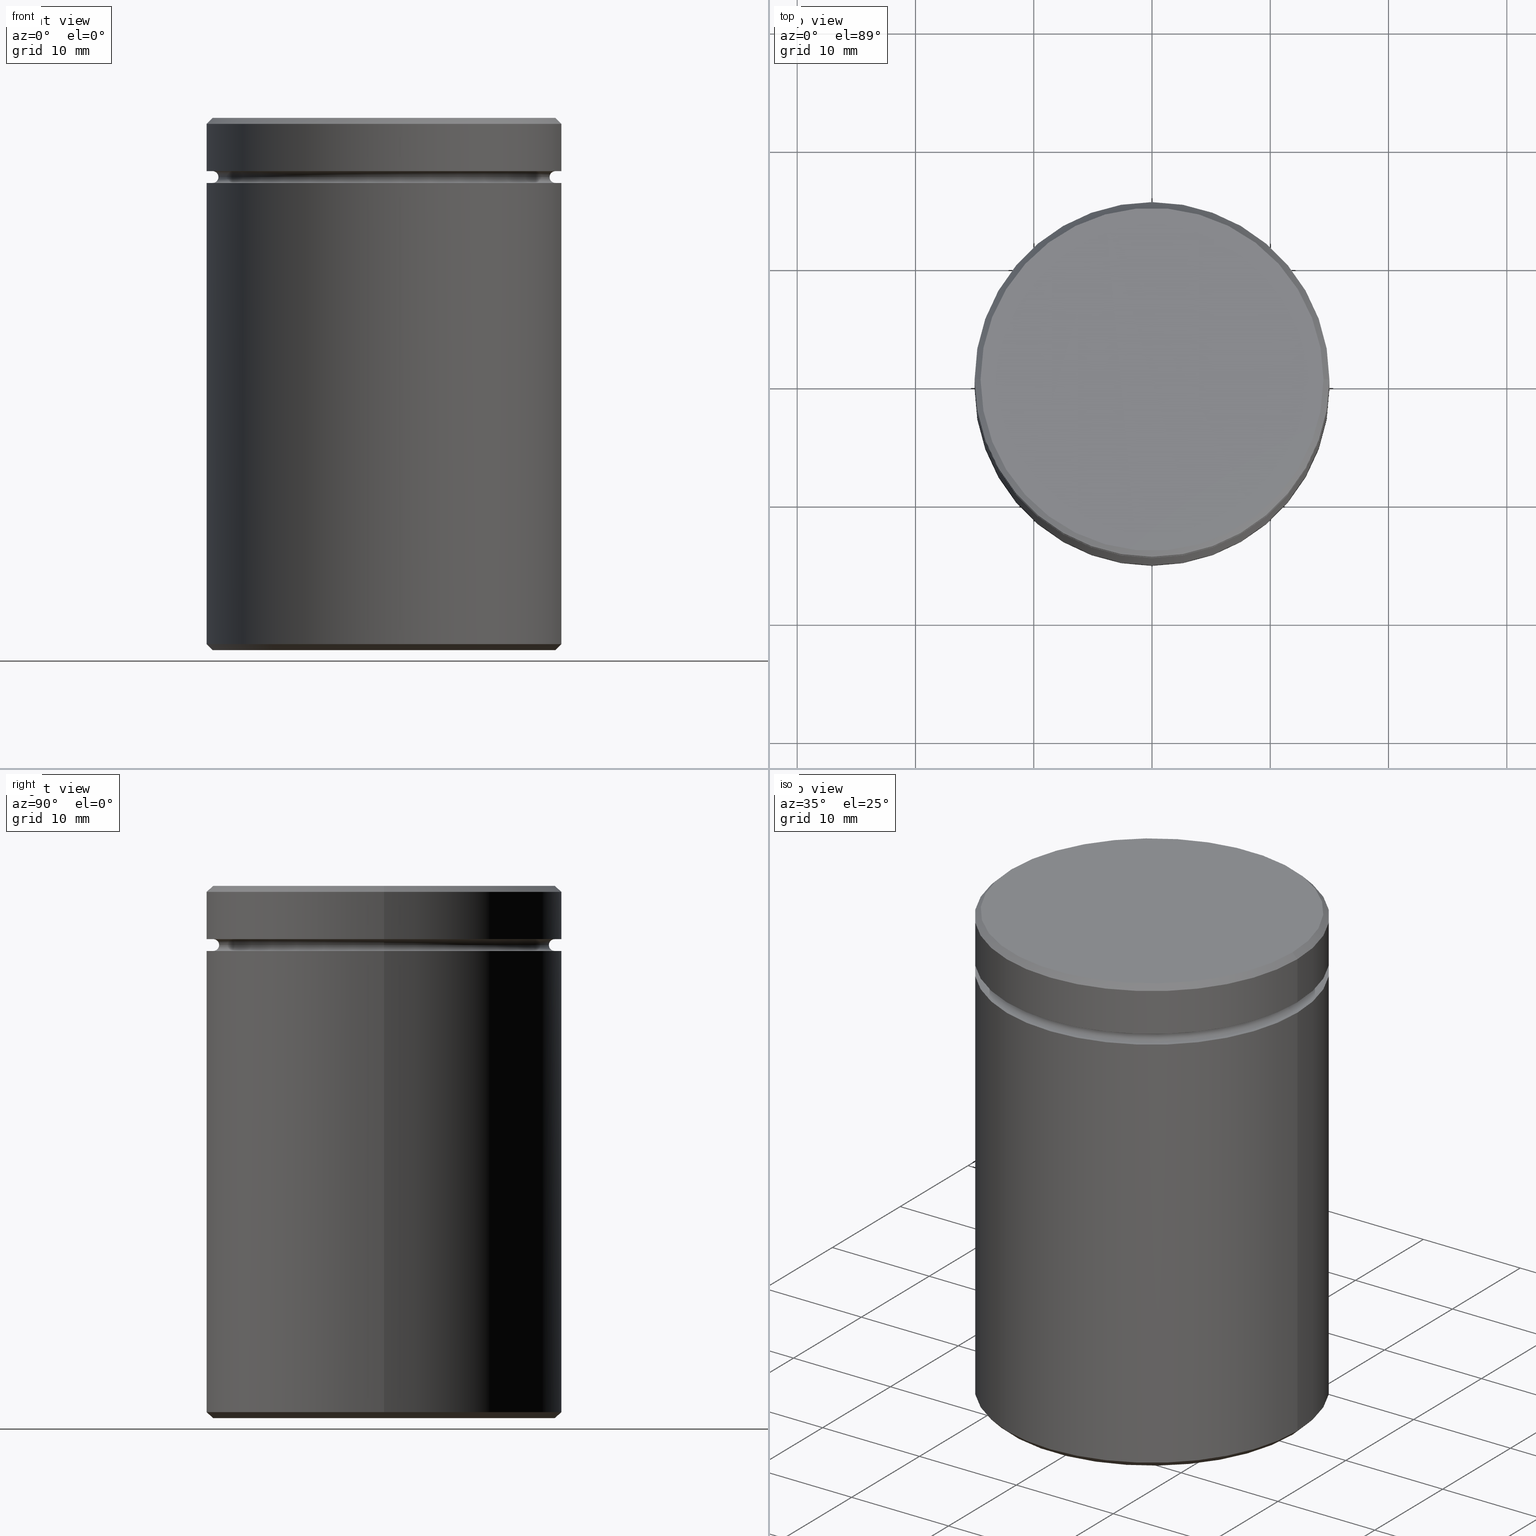
[diagram: canonical four-view strip — front | top / right | iso, engineering-drawing reading convention]
A machine part, canonical four-view strip (front | top / right | iso — engineering-drawing reading convention). The complete STEP part file that produces these views, byte-faithful:
ISO-10303-21;
HEADER;
FILE_DESCRIPTION (( 'STEP AP203' ),
    '1' );
FILE_NAME ('9a0f.STEP',
    '2024-01-02T17:58:48',
    ( '' ),
    ( '' ),
    'SwSTEP 2.0',
    'SolidWorks 2019',
    '' );
FILE_SCHEMA (( 'CONFIG_CONTROL_DESIGN' ));
ENDSEC;

DATA;
#1 = PERSON ( 'NEUR�EN�', 'NEUR�EN�', 'NEUR�EN�', ('NEUR�EN�'), ('NEUR�EN�'), ('NEUR�EN�') ) ;
#2 = PERSON_AND_ORGANIZATION ( #1, #469 ) ;
#3 = CC_DESIGN_PERSON_AND_ORGANIZATION_ASSIGNMENT ( #487, #372, ( #151 ) ) ;
#4 = DIRECTION ( 'NONE',  ( 1.000000000000000000, 0.000000000000000000, 0.000000000000000000 ) ) ;
#5 = ORIENTED_EDGE ( 'NONE', *, *, #191, .F. ) ;
#6 = ORIENTED_EDGE ( 'NONE', *, *, #263, .T. ) ;
#7 = DIRECTION ( 'NONE',  ( 1.000000000000000000, 0.000000000000000000, 0.000000000000000000 ) ) ;
#8 = APPROVAL_PERSON_ORGANIZATION ( #401, #565, #238 ) ;
#9 = EDGE_CURVE ( 'NONE', #413, #302, #107, .T. ) ;
#10 = PERSON_AND_ORGANIZATION_ROLE ( 'creator' ) ;
#11 = DIRECTION ( 'NONE',  ( -1.000000000000000000, 0.000000000000000000, 0.000000000000000000 ) ) ;
#12 = APPROVAL_DATE_TIME ( #408, #481 ) ;
#13 = ORIENTED_EDGE ( 'NONE', *, *, #285, .F. ) ;
#14 = ORIENTED_EDGE ( 'NONE', *, *, #522, .F. ) ;
#15 = DIRECTION ( 'NONE',  ( 0.000000000000000000, 0.000000000000000000, -1.000000000000000000 ) ) ;
#16 = EDGE_LOOP ( 'NONE', ( #307, #131, #212, #122 ) ) ;
#17 = APPLICATION_PROTOCOL_DEFINITION ( 'international standard', 'config_control_design', 1994, #443 ) ;
#18 = DIRECTION ( 'NONE',  ( 0.000000000000000000, -0.000000000000000000, 1.000000000000000000 ) ) ;
#19 = ADVANCED_FACE ( 'NONE', ( #181 ), #256, .T. ) ;
#20 = CC_DESIGN_APPROVAL ( #481, ( #376 ) ) ;
#21 = DIRECTION ( 'NONE',  ( -0.000000000000000000, -0.000000000000000000, 1.000000000000000000 ) ) ;
#22 = DIRECTION ( 'NONE',  ( -1.000000000000000000, 0.000000000000000000, -0.000000000000000000 ) ) ;
#23 = EDGE_CURVE ( 'NONE', #366, #95, #306, .T. ) ;
#24 = CARTESIAN_POINT ( 'NONE',  ( 0.000000000000000000, 0.000000000000000000, -15.99999999999999645 ) ) ;
#25 = CIRCLE ( 'NONE', #374, 15.00000000000000000 ) ;
#26 = ADVANCED_FACE ( 'NONE', ( #226 ), #435, .T. ) ;
#27 = DIRECTION ( 'NONE',  ( 0.000000000000000000, 0.000000000000000000, -1.000000000000000000 ) ) ;
#28 = ORIENTED_EDGE ( 'NONE', *, *, #239, .T. ) ;
#29 = DIRECTION ( 'NONE',  ( 0.000000000000000000, 0.000000000000000000, -1.000000000000000000 ) ) ;
#30 = VERTEX_POINT ( 'NONE', #514 ) ;
#31 = CARTESIAN_POINT ( 'NONE',  ( 0.000000000000000000, 0.000000000000000000, -5.500000000000000000 ) ) ;
#32 = EDGE_CURVE ( 'NONE', #236, #450, #42, .T. ) ;
#33 = EDGE_CURVE ( 'NONE', #551, #413, #180, .T. ) ;
#34 = EDGE_LOOP ( 'NONE', ( #83, #505 ) ) ;
#35 = CONICAL_SURFACE ( 'NONE', #358, 15.00000000000000000, 0.7853981633974430610 ) ;
#36 = AXIS2_PLACEMENT_3D ( 'NONE', #544, #550, #252 ) ;
#37 = APPROVAL_PERSON_ORGANIZATION ( #354, #394, #114 ) ;
#38 = DIRECTION ( 'NONE',  ( 0.000000000000000000, -0.000000000000000000, 1.000000000000000000 ) ) ;
#39 = ORIENTED_EDGE ( 'NONE', *, *, #549, .T. ) ;
#40 = ORIENTED_EDGE ( 'NONE', *, *, #129, .T. ) ;
#41 = DIRECTION ( 'NONE',  ( -0.000000000000000000, -0.000000000000000000, 1.000000000000000000 ) ) ;
#42 = LINE ( 'NONE', #222, #287 ) ;
#43 = ORIENTED_EDGE ( 'NONE', *, *, #449, .T. ) ;
#44 = DIRECTION ( 'NONE',  ( -0.000000000000000000, -0.000000000000000000, 1.000000000000000000 ) ) ;
#45 = VECTOR ( 'NONE', #458, 1000.000000000000000 ) ;
#46 = EDGE_LOOP ( 'NONE', ( #64, #192, #5, #429 ) ) ;
#47 = VERTEX_POINT ( 'NONE', #472 ) ;
#48 = ORIENTED_EDGE ( 'NONE', *, *, #229, .F. ) ;
#49 = ORIENTED_EDGE ( 'NONE', *, *, #251, .F. ) ;
#50 = DIRECTION ( 'NONE',  ( 0.000000000000000000, 0.000000000000000000, -1.000000000000000000 ) ) ;
#51 = ORIENTED_EDGE ( 'NONE', *, *, #387, .T. ) ;
#52 = APPROVAL_DATE_TIME ( #531, #394 ) ;
#53 = EDGE_LOOP ( 'NONE', ( #66, #39 ) ) ;
#54 = FACE_OUTER_BOUND ( 'NONE', #102, .T. ) ;
#55 = CIRCLE ( 'NONE', #346, 0.5000000000000004441 ) ;
#56 = ADVANCED_FACE ( 'NONE', ( #564 ), #135, .T. ) ;
#57 = DIRECTION ( 'NONE',  ( -0.000000000000000000, -0.000000000000000000, 1.000000000000000000 ) ) ;
#58 = ORIENTED_EDGE ( 'NONE', *, *, #23, .F. ) ;
#59 = PERSON_AND_ORGANIZATION ( #1, #469 ) ;
#60 = ADVANCED_FACE ( 'NONE', ( #557 ), #436, .F. ) ;
#61 = CARTESIAN_POINT ( 'NONE',  ( 14.50000000000000355, 1.806354028742346196E-15, 0.000000000000000000 ) ) ;
#62 = DIRECTION ( 'NONE',  ( 0.000000000000000000, 0.000000000000000000, -1.000000000000000000 ) ) ;
#63 = CIRCLE ( 'NONE', #139, 14.49999999999999112 ) ;
#64 = ORIENTED_EDGE ( 'NONE', *, *, #235, .F. ) ;
#65 = CARTESIAN_POINT ( 'NONE',  ( 14.49999999999999822, 0.000000000000000000, -5.500000000000000000 ) ) ;
#66 = ORIENTED_EDGE ( 'NONE', *, *, #9, .T. ) ;
#67 = EDGE_CURVE ( 'NONE', #492, #319, #428, .T. ) ;
#68 = CARTESIAN_POINT ( 'NONE',  ( 0.000000000000000000, 0.000000000000000000, 0.000000000000000000 ) ) ;
#69 = VERTEX_POINT ( 'NONE', #215 ) ;
#70 = CONICAL_SURFACE ( 'NONE', #150, 14.50000000000000355, 0.7853981633974466137 ) ;
#71 = LOCAL_TIME ( 18, 58, 48.00000000000000000, #94 ) ;
#72 = CARTESIAN_POINT ( 'NONE',  ( 0.000000000000000000, 0.000000000000000000, -44.49999999999998579 ) ) ;
#73 = CARTESIAN_POINT ( 'NONE',  ( 14.50000000000000355, 1.775737858763662804E-15, 0.000000000000000000 ) ) ;
#74 = CARTESIAN_POINT ( 'NONE',  ( 15.00000000000000000, 0.000000000000000000, -44.49999999999998579 ) ) ;
#75 = DIRECTION ( 'NONE',  ( -1.000000000000000000, 0.000000000000000000, 0.000000000000000000 ) ) ;
#76 = AXIS2_PLACEMENT_3D ( 'NONE', #228, #540, #398 ) ;
#77 = APPROVAL_PERSON_ORGANIZATION ( #2, #481, #322 ) ;
#78 = DIRECTION ( 'NONE',  ( 1.000000000000000000, 0.000000000000000000, 0.000000000000000000 ) ) ;
#79 = ORIENTED_EDGE ( 'NONE', *, *, #549, .F. ) ;
#80 = CARTESIAN_POINT ( 'NONE',  ( 0.000000000000000000, 0.000000000000000000, -4.500000000000000888 ) ) ;
#81 = ORIENTED_EDGE ( 'NONE', *, *, #387, .F. ) ;
#82 = ORIENTED_EDGE ( 'NONE', *, *, #373, .T. ) ;
#83 = ORIENTED_EDGE ( 'NONE', *, *, #329, .F. ) ;
#84 = ADVANCED_FACE ( 'NONE', ( #484 ), #170, .T. ) ;
#85 = APPLICATION_PROTOCOL_DEFINITION ( 'international standard', 'config_control_design', 1994, #92 ) ;
#86 = ORIENTED_EDGE ( 'NONE', *, *, #191, .T. ) ;
#87 = EDGE_LOOP ( 'NONE', ( #439, #444 ) ) ;
#88 = DIRECTION ( 'NONE',  ( -0.000000000000000000, -0.000000000000000000, -1.000000000000000000 ) ) ;
#89 = CARTESIAN_POINT ( 'NONE',  ( 0.000000000000000000, 0.000000000000000000, -4.999999999999999112 ) ) ;
#90 = DIRECTION ( 'NONE',  ( 1.000000000000000000, 0.000000000000000000, 0.000000000000000000 ) ) ;
#91 = TOROIDAL_SURFACE ( 'NONE', #173, 14.49999999999999822, 0.5000000000000000000 ) ;
#92 = APPLICATION_CONTEXT ( 'configuration controlled 3d designs of mechanical parts and assemblies' ) ;
#93 = AXIS2_PLACEMENT_3D ( 'NONE', #379, #177, #519 ) ;
#94 = COORDINATED_UNIVERSAL_TIME_OFFSET ( 1, 0, .AHEAD. ) ;
#95 = VERTEX_POINT ( 'NONE', #176 ) ;
#96 = FACE_OUTER_BOUND ( 'NONE', #194, .T. ) ;
#97 = DIRECTION ( 'NONE',  ( -0.000000000000000000, -0.000000000000000000, -1.000000000000000000 ) ) ;
#98 = AXIS2_PLACEMENT_3D ( 'NONE', #477, #530, #438 ) ;
#99 = ADVANCED_FACE ( 'NONE', ( #561 ), #241, .F. ) ;
#100 = LINE ( 'NONE', #106, #45 ) ;
#101 = AXIS2_PLACEMENT_3D ( 'NONE', #369, #278, #418 ) ;
#102 = EDGE_LOOP ( 'NONE', ( #82, #421 ) ) ;
#103 = PRODUCT_DEFINITION ( 'NEZN�M�', '', #376, #417 ) ;
#104 = COORDINATED_UNIVERSAL_TIME_OFFSET ( 1, 0, .AHEAD. ) ;
#105 = DIRECTION ( 'NONE',  ( 1.000000000000000000, 0.000000000000000000, 0.000000000000000000 ) ) ;
#106 = CARTESIAN_POINT ( 'NONE',  ( -15.00000000000000000, 1.836970198721029589E-15, 0.000000000000000000 ) ) ;
#107 = CIRCLE ( 'NONE', #341, 14.49999999999999822 ) ;
#108 = VECTOR ( 'NONE', #274, 1000.000000000000000 ) ;
#109 = LOCAL_TIME ( 18, 58, 48.00000000000000000, #142 ) ;
#110 = AXIS2_PLACEMENT_3D ( 'NONE', #31, #124, #264 ) ;
#111 = DIRECTION ( 'NONE',  ( 1.000000000000000000, 0.000000000000000000, 0.000000000000000000 ) ) ;
#112 = EDGE_CURVE ( 'NONE', #171, #551, #425, .T. ) ;
#113 = EDGE_LOOP ( 'NONE', ( #402, #527, #526, #225 ) ) ;
#114 = APPROVAL_ROLE ( '' ) ;
#115 = DIRECTION ( 'NONE',  ( 0.000000000000000000, 0.000000000000000000, -1.000000000000000000 ) ) ;
#116 = EDGE_LOOP ( 'NONE', ( #28, #382 ) ) ;
#117 = DIRECTION ( 'NONE',  ( 0.7071067811865463515, 8.659560562354919300E-17, -0.7071067811865487940 ) ) ;
#118 = AXIS2_PLACEMENT_3D ( 'NONE', #403, #50, #11 ) ;
#119 = AXIS2_PLACEMENT_3D ( 'NONE', #169, #339, #78 ) ;
#120 = EDGE_CURVE ( 'NONE', #523, #47, #167, .T. ) ;
#121 = CARTESIAN_POINT ( 'NONE',  ( 15.00000000000000000, 0.000000000000000000, -4.500000000000000888 ) ) ;
#122 = ORIENTED_EDGE ( 'NONE', *, *, #449, .F. ) ;
#123 = ORIENTED_EDGE ( 'NONE', *, *, #223, .F. ) ;
#124 = DIRECTION ( 'NONE',  ( 0.000000000000000000, 0.000000000000000000, -1.000000000000000000 ) ) ;
#125 = DIRECTION ( 'NONE',  ( -0.000000000000000000, -0.000000000000000000, 1.000000000000000000 ) ) ;
#126 = AXIS2_PLACEMENT_3D ( 'NONE', #80, #259, #128 ) ;
#127 = DIRECTION ( 'NONE',  ( -1.000000000000000000, 0.000000000000000000, 0.000000000000000000 ) ) ;
#128 = DIRECTION ( 'NONE',  ( -1.000000000000000000, 0.000000000000000000, 0.000000000000000000 ) ) ;
#129 = EDGE_CURVE ( 'NONE', #392, #315, #313, .T. ) ;
#130 = ORIENTED_EDGE ( 'NONE', *, *, #455, .F. ) ;
#131 = ORIENTED_EDGE ( 'NONE', *, *, #190, .F. ) ;
#132 = DIRECTION ( 'NONE',  ( 0.000000000000000000, 0.000000000000000000, -1.000000000000000000 ) ) ;
#133 = DIRECTION ( 'NONE',  ( 1.000000000000000000, 0.000000000000000000, 0.000000000000000000 ) ) ;
#134 = CYLINDRICAL_SURFACE ( 'NONE', #461, 9.500000000000000000 ) ;
#135 = CYLINDRICAL_SURFACE ( 'NONE', #509, 15.00000000000000000 ) ;
#136 = CC_DESIGN_DATE_AND_TIME_ASSIGNMENT ( #137, #317, ( #103 ) ) ;
#137 = DATE_AND_TIME ( #271, #109 ) ;
#138 = EDGE_LOOP ( 'NONE', ( #426, #491, #205, #466 ) ) ;
#139 = AXIS2_PLACEMENT_3D ( 'NONE', #276, #409, #314 ) ;
#140 = CARTESIAN_POINT ( 'NONE',  ( 0.000000000000000000, 0.000000000000000000, 0.000000000000000000 ) ) ;
#141 = CC_DESIGN_SECURITY_CLASSIFICATION ( #151, ( #376 ) ) ;
#142 = COORDINATED_UNIVERSAL_TIME_OFFSET ( 1, 0, .AHEAD. ) ;
#143 = EDGE_LOOP ( 'NONE', ( #393, #452, #284, #48 ) ) ;
#144 = DIRECTION ( 'NONE',  ( -0.000000000000000000, -0.000000000000000000, 1.000000000000000000 ) ) ;
#145 = PLANE ( 'NONE',  #219 ) ;
#146 = ADVANCED_FACE ( 'NONE', ( #496, #54 ), #145, .T. ) ;
#147 = ORIENTED_EDGE ( 'NONE', *, *, #213, .F. ) ;
#148 = VERTEX_POINT ( 'NONE', #499 ) ;
#149 = FACE_OUTER_BOUND ( 'NONE', #296, .T. ) ;
#150 = AXIS2_PLACEMENT_3D ( 'NONE', #68, #27, #568 ) ;
#151 = SECURITY_CLASSIFICATION ( '', '', #446 ) ;
#152 = DIRECTION ( 'NONE',  ( 0.000000000000000000, 0.000000000000000000, -1.000000000000000000 ) ) ;
#153 = ADVANCED_FACE ( 'NONE', ( #149 ), #323, .T. ) ;
#154 = EDGE_CURVE ( 'NONE', #171, #302, #273, .T. ) ;
#155 = DIRECTION ( 'NONE',  ( -1.000000000000000000, 0.000000000000000000, 0.000000000000000000 ) ) ;
#156 = DIRECTION ( 'NONE',  ( 1.000000000000000000, 0.000000000000000000, 0.000000000000000000 ) ) ;
#157 = CIRCLE ( 'NONE', #36, 9.500000000000000000 ) ;
#158 = DATE_AND_TIME ( #539, #312 ) ;
#159 = CARTESIAN_POINT ( 'NONE',  ( 14.49999999999999822, 1.775737858763662015E-15, -4.500000000000000888 ) ) ;
#160 = CC_DESIGN_PERSON_AND_ORGANIZATION_ASSIGNMENT ( #506, #10, ( #376 ) ) ;
#161 = CARTESIAN_POINT ( 'NONE',  ( 0.000000000000000000, 15.00000000000000000, -45.00000000000000000 ) ) ;
#162 = EDGE_CURVE ( 'NONE', #488, #47, #493, .T. ) ;
#163 = AXIS2_PLACEMENT_3D ( 'NONE', #265, #218, #385 ) ;
#164 = DIRECTION ( 'NONE',  ( -1.000000000000000000, 0.000000000000000000, 0.000000000000000000 ) ) ;
#165 = ORIENTED_EDGE ( 'NONE', *, *, #494, .F. ) ;
#166 = AXIS2_PLACEMENT_3D ( 'NONE', #161, #29, #22 ) ;
#167 = CIRCLE ( 'NONE', #556, 15.00000000000000000 ) ;
#168 = CARTESIAN_POINT ( 'NONE',  ( 9.500000000000000000, 1.163414459189985288E-15, -45.00000000000000000 ) ) ;
#169 = CARTESIAN_POINT ( 'NONE',  ( 0.000000000000000000, 0.000000000000000000, 0.000000000000000000 ) ) ;
#170 = PLANE ( 'NONE',  #163 ) ;
#171 = VERTEX_POINT ( 'NONE', #411 ) ;
#172 = DIRECTION ( 'NONE',  ( -0.000000000000000000, -0.000000000000000000, -1.000000000000000000 ) ) ;
#173 = AXIS2_PLACEMENT_3D ( 'NONE', #507, #115, #545 ) ;
#174 = CIRCLE ( 'NONE', #110, 14.49999999999999822 ) ;
#175 = FACE_OUTER_BOUND ( 'NONE', #364, .T. ) ;
#176 = CARTESIAN_POINT ( 'NONE',  ( 15.00000000000000000, 0.000000000000000000, -0.4999999999999970024 ) ) ;
#177 = DIRECTION ( 'NONE',  ( -0.000000000000000000, -0.000000000000000000, 1.000000000000000000 ) ) ;
#178 = CARTESIAN_POINT ( 'NONE',  ( 0.000000000000000000, 0.000000000000000000, 0.000000000000000000 ) ) ;
#179 = CALENDAR_DATE ( 2024, 2, 1 ) ;
#180 = CIRCLE ( 'NONE', #308, 0.5000000000000004441 ) ;
#181 = FACE_OUTER_BOUND ( 'NONE', #143, .T. ) ;
#182 = ADVANCED_FACE ( 'NONE', ( #187, #96 ), #197, .T. ) ;
#183 = AXIS2_PLACEMENT_3D ( 'NONE', #193, #363, #537 ) ;
#184 = ORIENTED_EDGE ( 'NONE', *, *, #33, .T. ) ;
#185 = CIRCLE ( 'NONE', #198, 14.49999999999999112 ) ;
#186 = ORIENTED_EDGE ( 'NONE', *, *, #154, .F. ) ;
#187 = FACE_BOUND ( 'NONE', #482, .T. ) ;
#188 = VERTEX_POINT ( 'NONE', #61 ) ;
#189 = DATE_TIME_ROLE ( 'classification_date' ) ;
#190 = EDGE_CURVE ( 'NONE', #492, #188, #399, .T. ) ;
#191 = EDGE_CURVE ( 'NONE', #319, #95, #380, .T. ) ;
#192 = ORIENTED_EDGE ( 'NONE', *, *, #304, .T. ) ;
#193 = CARTESIAN_POINT ( 'NONE',  ( 0.000000000000000000, 0.000000000000000000, -5.500000000000000000 ) ) ;
#194 = EDGE_LOOP ( 'NONE', ( #497, #81 ) ) ;
#195 = LINE ( 'NONE', #272, #108 ) ;
#196 = AXIS2_PLACEMENT_3D ( 'NONE', #521, #297, #75 ) ;
#197 = PLANE ( 'NONE',  #485 ) ;
#198 = AXIS2_PLACEMENT_3D ( 'NONE', #309, #132, #127 ) ;
#199 = DIRECTION ( 'NONE',  ( 1.000000000000000000, 0.000000000000000000, 0.000000000000000000 ) ) ;
#200 = CYLINDRICAL_SURFACE ( 'NONE', #266, 9.500000000000000000 ) ;
#201 = CLOSED_SHELL ( 'NONE', ( #397, #333, #348, #433, #352, #19, #56, #337, #26, #508, #182, #146, #153, #498, #84, #289, #406, #99, #60 ) ) ;
#202 = PERSON_AND_ORGANIZATION ( #1, #469 ) ;
#203 = FACE_OUTER_BOUND ( 'NONE', #529, .T. ) ;
#204 = CIRCLE ( 'NONE', #183, 15.00000000000000000 ) ;
#205 = ORIENTED_EDGE ( 'NONE', *, *, #251, .T. ) ;
#206 = FACE_BOUND ( 'NONE', #34, .T. ) ;
#207 = DIRECTION ( 'NONE',  ( 1.000000000000000000, 0.000000000000000000, 0.000000000000000000 ) ) ;
#208 = AXIS2_PLACEMENT_3D ( 'NONE', #268, #350, #211 ) ;
#209 = CIRCLE ( 'NONE', #335, 14.49999999999999822 ) ;
#210 = LINE ( 'NONE', #74, #359 ) ;
#211 = DIRECTION ( 'NONE',  ( 1.000000000000000000, 0.000000000000000000, 0.000000000000000000 ) ) ;
#212 = ORIENTED_EDGE ( 'NONE', *, *, #67, .T. ) ;
#213 = EDGE_CURVE ( 'NONE', #488, #69, #63, .T. ) ;
#214 = CARTESIAN_POINT ( 'NONE',  ( -15.00000000000000000, 1.836970198721029589E-15, 0.000000000000000000 ) ) ;
#215 = CARTESIAN_POINT ( 'NONE',  ( 14.49999999999999112, 0.000000000000000000, -45.00000000000000000 ) ) ;
#216 = EDGE_CURVE ( 'NONE', #450, #30, #460, .T. ) ;
#217 = PERSON_AND_ORGANIZATION_ROLE ( 'design_owner' ) ;
#218 = DIRECTION ( 'NONE',  ( 0.000000000000000000, 0.000000000000000000, -1.000000000000000000 ) ) ;
#219 = AXIS2_PLACEMENT_3D ( 'NONE', #324, #18, #7 ) ;
#220 = LOCAL_TIME ( 18, 58, 48.00000000000000000, #495 ) ;
#221 = LINE ( 'NONE', #214, #566 ) ;
#222 = CARTESIAN_POINT ( 'NONE',  ( 9.500000000000000000, 1.163414459189985288E-15, -15.99999999999999645 ) ) ;
#223 = EDGE_CURVE ( 'NONE', #47, #288, #100, .T. ) ;
#224 = VERTEX_POINT ( 'NONE', #532 ) ;
#225 = ORIENTED_EDGE ( 'NONE', *, *, #279, .F. ) ;
#226 = FACE_OUTER_BOUND ( 'NONE', #454, .T. ) ;
#227 = CALENDAR_DATE ( 2024, 2, 1 ) ;
#228 = CARTESIAN_POINT ( 'NONE',  ( -14.49999999999999822, 0.000000000000000000, -5.000000000000000888 ) ) ;
#229 = EDGE_CURVE ( 'NONE', #523, #148, #195, .T. ) ;
#230 = AXIS2_PLACEMENT_3D ( 'NONE', #512, #253, #164 ) ;
#231 = CALENDAR_DATE ( 2024, 2, 1 ) ;
#232 = ORIENTED_EDGE ( 'NONE', *, *, #279, .T. ) ;
#233 = DIRECTION ( 'NONE',  ( -1.000000000000000000, 0.000000000000000000, 0.000000000000000000 ) ) ;
#234 = EDGE_LOOP ( 'NONE', ( #147, #404, #351, #342 ) ) ;
#235 = EDGE_CURVE ( 'NONE', #188, #492, #244, .T. ) ;
#236 = VERTEX_POINT ( 'NONE', #451 ) ;
#237 = DIRECTION ( 'NONE',  ( -1.000000000000000000, 0.000000000000000000, 0.000000000000000000 ) ) ;
#238 = APPROVAL_ROLE ( '' ) ;
#239 = EDGE_CURVE ( 'NONE', #224, #236, #554, .T. ) ;
#240 = DIRECTION ( 'NONE',  ( 1.224646799147353207E-16, 1.000000000000000000, 0.000000000000000000 ) ) ;
#241 = TOROIDAL_SURFACE ( 'NONE', #208, 14.49999999999999822, 0.5000000000000000000 ) ;
#242 = ADVANCED_BREP_SHAPE_REPRESENTATION ( '9a0f', ( #453, #119 ), #503 ) ;
#243 = CARTESIAN_POINT ( 'NONE',  ( 0.000000000000000000, 0.000000000000000000, -0.4999999999999970024 ) ) ;
#244 = CIRCLE ( 'NONE', #410, 14.50000000000000355 ) ;
#245 = DIRECTION ( 'NONE',  ( -0.000000000000000000, -0.000000000000000000, -1.000000000000000000 ) ) ;
#246 = CARTESIAN_POINT ( 'NONE',  ( 14.49999999999999822, 1.775737858763662015E-15, -5.000000000000000888 ) ) ;
#247 = ORIENTED_EDGE ( 'NONE', *, *, #162, .F. ) ;
#248 = DIRECTION ( 'NONE',  ( -0.000000000000000000, -0.000000000000000000, 1.000000000000000000 ) ) ;
#249 = CIRCLE ( 'NONE', #541, 15.00000000000000000 ) ;
#250 = AXIS2_PLACEMENT_3D ( 'NONE', #338, #483, #90 ) ;
#251 = EDGE_CURVE ( 'NONE', #171, #392, #563, .T. ) ;
#252 = DIRECTION ( 'NONE',  ( -1.000000000000000000, 0.000000000000000000, 0.000000000000000000 ) ) ;
#253 = DIRECTION ( 'NONE',  ( 0.000000000000000000, 0.000000000000000000, -1.000000000000000000 ) ) ;
#254 = CC_DESIGN_DATE_AND_TIME_ASSIGNMENT ( #362, #189, ( #151 ) ) ;
#255 =( NAMED_UNIT ( * ) SI_UNIT ( $, .STERADIAN. ) SOLID_ANGLE_UNIT ( ) );
#256 = CYLINDRICAL_SURFACE ( 'NONE', #98, 15.00000000000000000 ) ;
#257 = CIRCLE ( 'NONE', #475, 15.00000000000000000 ) ;
#258 = PERSON_AND_ORGANIZATION ( #1, #469 ) ;
#259 = DIRECTION ( 'NONE',  ( -0.000000000000000000, -0.000000000000000000, 1.000000000000000000 ) ) ;
#260 = CARTESIAN_POINT ( 'NONE',  ( -15.00000000000000000, 1.836970198721029589E-15, -4.500000000000000888 ) ) ;
#261 = DIRECTION ( 'NONE',  ( -0.000000000000000000, -0.000000000000000000, 1.000000000000000000 ) ) ;
#262 = VECTOR ( 'NONE', #480, 1000.000000000000000 ) ;
#263 = EDGE_CURVE ( 'NONE', #315, #392, #209, .T. ) ;
#264 = DIRECTION ( 'NONE',  ( 1.000000000000000000, 0.000000000000000000, 0.000000000000000000 ) ) ;
#265 = CARTESIAN_POINT ( 'NONE',  ( 0.000000000000000000, 0.000000000000000000, -15.99999999999999645 ) ) ;
#266 = AXIS2_PLACEMENT_3D ( 'NONE', #24, #245, #155 ) ;
#267 = CARTESIAN_POINT ( 'NONE',  ( 15.00000000000000000, 0.000000000000000000, -44.49999999999998579 ) ) ;
#268 = CARTESIAN_POINT ( 'NONE',  ( 0.000000000000000000, 0.000000000000000000, -4.999999999999999112 ) ) ;
#269 = APPROVAL_STATUS ( 'not_yet_approved' ) ;
#270 = CARTESIAN_POINT ( 'NONE',  ( 0.000000000000000000, 0.000000000000000000, -45.00000000000000000 ) ) ;
#271 = CALENDAR_DATE ( 2024, 2, 1 ) ;
#272 = CARTESIAN_POINT ( 'NONE',  ( 15.00000000000000000, 0.000000000000000000, 0.000000000000000000 ) ) ;
#273 = CIRCLE ( 'NONE', #280, 0.5000000000000004441 ) ;
#274 = DIRECTION ( 'NONE',  ( -0.000000000000000000, -0.000000000000000000, 1.000000000000000000 ) ) ;
#275 = CARTESIAN_POINT ( 'NONE',  ( 0.000000000000000000, 15.00000000000000000, -4.500000000000000888 ) ) ;
#276 = CARTESIAN_POINT ( 'NONE',  ( 0.000000000000000000, 0.000000000000000000, -45.00000000000000000 ) ) ;
#277 = AXIS2_PLACEMENT_3D ( 'NONE', #243, #15, #489 ) ;
#278 = DIRECTION ( 'NONE',  ( -0.000000000000000000, -0.000000000000000000, 1.000000000000000000 ) ) ;
#279 = EDGE_CURVE ( 'NONE', #224, #30, #316, .T. ) ;
#280 = AXIS2_PLACEMENT_3D ( 'NONE', #318, #240, #365 ) ;
#281 = ORIENTED_EDGE ( 'NONE', *, *, #112, .T. ) ;
#282 = FACE_OUTER_BOUND ( 'NONE', #558, .T. ) ;
#283 = ORIENTED_EDGE ( 'NONE', *, *, #9, .F. ) ;
#284 = ORIENTED_EDGE ( 'NONE', *, *, #373, .F. ) ;
#285 = EDGE_CURVE ( 'NONE', #288, #148, #204, .T. ) ;
#286 = DIRECTION ( 'NONE',  ( -0.000000000000000000, -0.000000000000000000, 1.000000000000000000 ) ) ;
#287 = VECTOR ( 'NONE', #172, 1000.000000000000000 ) ;
#288 = VERTEX_POINT ( 'NONE', #332 ) ;
#289 = ADVANCED_FACE ( 'NONE', ( #470 ), #311, .T. ) ;
#290 = ORIENTED_EDGE ( 'NONE', *, *, #32, .F. ) ;
#291 = EDGE_LOOP ( 'NONE', ( #320, #536, #86, #58 ) ) ;
#292 = LINE ( 'NONE', #73, #502 ) ;
#293 = VECTOR ( 'NONE', #97, 1000.000000000000000 ) ;
#294 = UNCERTAINTY_MEASURE_WITH_UNIT (LENGTH_MEASURE( 1.000000000000000082E-05 ), #384, 'distance_accuracy_value', 'NONE');
#295 = DIRECTION ( 'NONE',  ( -0.000000000000000000, -0.000000000000000000, 1.000000000000000000 ) ) ;
#296 = EDGE_LOOP ( 'NONE', ( #123, #478, #422, #13 ) ) ;
#297 = DIRECTION ( 'NONE',  ( 0.000000000000000000, 0.000000000000000000, -1.000000000000000000 ) ) ;
#298 = DIRECTION ( 'NONE',  ( 1.000000000000000000, 0.000000000000000000, 0.000000000000000000 ) ) ;
#299 = AXIS2_PLACEMENT_3D ( 'NONE', #504, #286, #111 ) ;
#300 = ORIENTED_EDGE ( 'NONE', *, *, #23, .T. ) ;
#301 = EDGE_LOOP ( 'NONE', ( #14, #51, #300, #43 ) ) ;
#302 = VERTEX_POINT ( 'NONE', #378 ) ;
#303 = ORIENTED_EDGE ( 'NONE', *, *, #129, .F. ) ;
#304 = EDGE_CURVE ( 'NONE', #188, #95, #292, .T. ) ;
#305 = DIRECTION ( 'NONE',  ( 1.000000000000000000, 0.000000000000000000, 0.000000000000000000 ) ) ;
#306 = LINE ( 'NONE', #347, #538 ) ;
#307 = ORIENTED_EDGE ( 'NONE', *, *, #304, .F. ) ;
#308 = AXIS2_PLACEMENT_3D ( 'NONE', #310, #441, #569 ) ;
#309 = CARTESIAN_POINT ( 'NONE',  ( 0.000000000000000000, 0.000000000000000000, -45.00000000000000000 ) ) ;
#310 = CARTESIAN_POINT ( 'NONE',  ( 14.49999999999999822, 0.000000000000000000, -4.999999999999999112 ) ) ;
#311 = CONICAL_SURFACE ( 'NONE', #533, 14.50000000000000355, 0.7853981633974466137 ) ;
#312 = LOCAL_TIME ( 18, 58, 48.00000000000000000, #546 ) ;
#313 = CIRCLE ( 'NONE', #126, 14.49999999999999822 ) ;
#314 = DIRECTION ( 'NONE',  ( -1.000000000000000000, 0.000000000000000000, 0.000000000000000000 ) ) ;
#315 = VERTEX_POINT ( 'NONE', #159 ) ;
#316 = LINE ( 'NONE', #490, #293 ) ;
#317 = DATE_TIME_ROLE ( 'creation_date' ) ;
#318 = CARTESIAN_POINT ( 'NONE',  ( -14.49999999999999822, 1.775737858763662015E-15, -4.999999999999999112 ) ) ;
#319 = VERTEX_POINT ( 'NONE', #548 ) ;
#320 = ORIENTED_EDGE ( 'NONE', *, *, #476, .T. ) ;
#321 = AXIS2_PLACEMENT_3D ( 'NONE', #375, #370, #156 ) ;
#322 = APPROVAL_ROLE ( '' ) ;
#323 = CYLINDRICAL_SURFACE ( 'NONE', #448, 15.00000000000000000 ) ;
#324 = CARTESIAN_POINT ( 'NONE',  ( 0.000000000000000000, 13.99999999999999822, -5.500000000000000000 ) ) ;
#325 = FACE_OUTER_BOUND ( 'NONE', #113, .T. ) ;
#326 = AXIS2_PLACEMENT_3D ( 'NONE', #355, #57, #368 ) ;
#327 = FACE_OUTER_BOUND ( 'NONE', #432, .T. ) ;
#328 = CC_DESIGN_APPROVAL ( #565, ( #103 ) ) ;
#329 = EDGE_CURVE ( 'NONE', #30, #450, #157, .T. ) ;
#330 = APPROVAL_STATUS ( 'not_yet_approved' ) ;
#331 = DIRECTION ( 'NONE',  ( -0.000000000000000000, -0.000000000000000000, 1.000000000000000000 ) ) ;
#332 = CARTESIAN_POINT ( 'NONE',  ( -15.00000000000000000, 1.836970198721029589E-15, -5.500000000000000000 ) ) ;
#333 = ADVANCED_FACE ( 'NONE', ( #203 ), #467, .F. ) ;
#334 = FACE_OUTER_BOUND ( 'NONE', #234, .T. ) ;
#335 = AXIS2_PLACEMENT_3D ( 'NONE', #534, #144, #237 ) ;
#336 = LOCAL_TIME ( 18, 58, 48.00000000000000000, #104 ) ;
#337 = ADVANCED_FACE ( 'NONE', ( #463, #206 ), #552, .T. ) ;
#338 = CARTESIAN_POINT ( 'NONE',  ( 0.000000000000000000, 0.000000000000000000, 0.000000000000000000 ) ) ;
#339 = DIRECTION ( 'NONE',  ( 0.000000000000000000, 0.000000000000000000, 1.000000000000000000 ) ) ;
#340 = DIRECTION ( 'NONE',  ( -0.000000000000000000, -0.000000000000000000, 1.000000000000000000 ) ) ;
#341 = AXIS2_PLACEMENT_3D ( 'NONE', #344, #381, #391 ) ;
#342 = ORIENTED_EDGE ( 'NONE', *, *, #500, .F. ) ;
#343 = CARTESIAN_POINT ( 'NONE',  ( -14.49999999999999112, 1.806354028742345013E-15, -45.00000000000000000 ) ) ;
#344 = CARTESIAN_POINT ( 'NONE',  ( 0.000000000000000000, 0.000000000000000000, -5.500000000000000000 ) ) ;
#345 = CC_DESIGN_PERSON_AND_ORGANIZATION_ASSIGNMENT ( #258, #217, ( #567 ) ) ;
#346 = AXIS2_PLACEMENT_3D ( 'NONE', #246, #377, #415 ) ;
#347 = CARTESIAN_POINT ( 'NONE',  ( 15.00000000000000000, 0.000000000000000000, 0.000000000000000000 ) ) ;
#348 = ADVANCED_FACE ( 'NONE', ( #334 ), #35, .T. ) ;
#349 = CARTESIAN_POINT ( 'NONE',  ( -14.50000000000000355, 0.000000000000000000, 0.000000000000000000 ) ) ;
#350 = DIRECTION ( 'NONE',  ( -0.000000000000000000, -0.000000000000000000, 1.000000000000000000 ) ) ;
#351 = ORIENTED_EDGE ( 'NONE', *, *, #120, .F. ) ;
#352 = ADVANCED_FACE ( 'NONE', ( #325 ), #200, .F. ) ;
#353 = EDGE_CURVE ( 'NONE', #236, #224, #473, .T. ) ;
#354 = PERSON_AND_ORGANIZATION ( #1, #469 ) ;
#355 = CARTESIAN_POINT ( 'NONE',  ( 0.000000000000000000, 0.000000000000000000, 0.000000000000000000 ) ) ;
#356 = ORIENTED_EDGE ( 'NONE', *, *, #239, .F. ) ;
#357 = ORIENTED_EDGE ( 'NONE', *, *, #420, .T. ) ;
#358 = AXIS2_PLACEMENT_3D ( 'NONE', #72, #248, #423 ) ;
#359 = VECTOR ( 'NONE', #430, 999.9999999999998863 ) ;
#360 = PERSON_AND_ORGANIZATION_ROLE ( 'design_supplier' ) ;
#361 = DIRECTION ( 'NONE',  ( 1.000000000000000000, 0.000000000000000000, 0.000000000000000000 ) ) ;
#362 = DATE_AND_TIME ( #231, #220 ) ;
#363 = DIRECTION ( 'NONE',  ( -0.000000000000000000, -0.000000000000000000, 1.000000000000000000 ) ) ;
#364 = EDGE_LOOP ( 'NONE', ( #290, #356, #232, #431 ) ) ;
#365 = DIRECTION ( 'NONE',  ( -1.000000000000000000, 1.224646799147349509E-16, 0.000000000000000000 ) ) ;
#366 = VERTEX_POINT ( 'NONE', #121 ) ;
#367 = AXIS2_PLACEMENT_3D ( 'NONE', #270, #152, #233 ) ;
#368 = DIRECTION ( 'NONE',  ( 1.000000000000000000, 0.000000000000000000, 0.000000000000000000 ) ) ;
#369 = CARTESIAN_POINT ( 'NONE',  ( 0.000000000000000000, 0.000000000000000000, -4.500000000000000888 ) ) ;
#370 = DIRECTION ( 'NONE',  ( -0.000000000000000000, -0.000000000000000000, 1.000000000000000000 ) ) ;
#371 = ORIENTED_EDGE ( 'NONE', *, *, #190, .T. ) ;
#372 = PERSON_AND_ORGANIZATION_ROLE ( 'classification_officer' ) ;
#373 = EDGE_CURVE ( 'NONE', #148, #288, #25, .T. ) ;
#374 = AXIS2_PLACEMENT_3D ( 'NONE', #501, #295, #199 ) ;
#375 = CARTESIAN_POINT ( 'NONE',  ( 0.000000000000000000, 0.000000000000000000, -4.999999999999999112 ) ) ;
#376 = PRODUCT_DEFINITION_FORMATION_WITH_SPECIFIED_SOURCE ( 'LIBOVOLN�', '', #567, .NOT_KNOWN. ) ;
#377 = DIRECTION ( 'NONE',  ( -1.224646799147353207E-16, 1.000000000000000000, 0.000000000000000000 ) ) ;
#378 = CARTESIAN_POINT ( 'NONE',  ( -14.49999999999999822, 1.775737858763662015E-15, -5.500000000000000000 ) ) ;
#379 = CARTESIAN_POINT ( 'NONE',  ( 0.000000000000000000, 0.000000000000000000, -44.49999999999998579 ) ) ;
#380 = CIRCLE ( 'NONE', #277, 15.00000000000000000 ) ;
#381 = DIRECTION ( 'NONE',  ( 0.000000000000000000, 0.000000000000000000, -1.000000000000000000 ) ) ;
#382 = ORIENTED_EDGE ( 'NONE', *, *, #353, .T. ) ;
#383 = ORIENTED_EDGE ( 'NONE', *, *, #235, .T. ) ;
#384 =( LENGTH_UNIT ( ) NAMED_UNIT ( * ) SI_UNIT ( .MILLI., .METRE. ) );
#385 = DIRECTION ( 'NONE',  ( -1.000000000000000000, 0.000000000000000000, -0.000000000000000000 ) ) ;
#386 = CARTESIAN_POINT ( 'NONE',  ( 0.000000000000000000, 0.000000000000000000, -15.99999999999999645 ) ) ;
#387 = EDGE_CURVE ( 'NONE', #517, #366, #511, .T. ) ;
#388 = CARTESIAN_POINT ( 'NONE',  ( -14.50000000000000355, 0.000000000000000000, 0.000000000000000000 ) ) ;
#389 = CIRCLE ( 'NONE', #321, 13.99999999999999822 ) ;
#390 = CARTESIAN_POINT ( 'NONE',  ( 0.000000000000000000, 0.000000000000000000, -0.4999999999999970024 ) ) ;
#391 = DIRECTION ( 'NONE',  ( 1.000000000000000000, 0.000000000000000000, 0.000000000000000000 ) ) ;
#392 = VERTEX_POINT ( 'NONE', #462 ) ;
#393 = ORIENTED_EDGE ( 'NONE', *, *, #120, .T. ) ;
#394 = APPROVAL ( #330, 'NEUR�EN�' ) ;
#395 = APPROVAL_DATE_TIME ( #158, #565 ) ;
#396 = CARTESIAN_POINT ( 'NONE',  ( 0.000000000000000000, 0.000000000000000000, 0.000000000000000000 ) ) ;
#397 = ADVANCED_FACE ( 'NONE', ( #282 ), #91, .F. ) ;
#398 = DIRECTION ( 'NONE',  ( 0.000000000000000000, 0.000000000000000000, -1.000000000000000000 ) ) ;
#399 = CIRCLE ( 'NONE', #326, 14.50000000000000355 ) ;
#400 = EDGE_CURVE ( 'NONE', #551, #171, #389, .T. ) ;
#401 = PERSON_AND_ORGANIZATION ( #1, #469 ) ;
#402 = ORIENTED_EDGE ( 'NONE', *, *, #353, .F. ) ;
#403 = CARTESIAN_POINT ( 'NONE',  ( 0.000000000000000000, 0.000000000000000000, -15.99999999999999645 ) ) ;
#404 = ORIENTED_EDGE ( 'NONE', *, *, #162, .T. ) ;
#405 = PERSON_AND_ORGANIZATION_ROLE ( 'creator' ) ;
#406 = ADVANCED_FACE ( 'NONE', ( #327 ), #547, .T. ) ;
#407 = CARTESIAN_POINT ( 'NONE',  ( 0.000000000000000000, 0.000000000000000000, 0.000000000000000000 ) ) ;
#408 = DATE_AND_TIME ( #227, #71 ) ;
#409 = DIRECTION ( 'NONE',  ( 0.000000000000000000, 0.000000000000000000, -1.000000000000000000 ) ) ;
#410 = AXIS2_PLACEMENT_3D ( 'NONE', #140, #445, #361 ) ;
#411 = CARTESIAN_POINT ( 'NONE',  ( -13.99999999999999822, 1.745121688784978228E-15, -4.999999999999999112 ) ) ;
#412 = DIRECTION ( 'NONE',  ( 0.000000000000000000, 0.000000000000000000, -1.000000000000000000 ) ) ;
#413 = VERTEX_POINT ( 'NONE', #65 ) ;
#414 = AXIS2_PLACEMENT_3D ( 'NONE', #396, #38, #133 ) ;
#415 = DIRECTION ( 'NONE',  ( -1.000000000000000000, -1.224646799147353454E-16, 0.000000000000000000 ) ) ;
#416 = ORIENTED_EDGE ( 'NONE', *, *, #33, .F. ) ;
#417 = DESIGN_CONTEXT ( 'detailed design', #443, 'design' ) ;
#418 = DIRECTION ( 'NONE',  ( 1.000000000000000000, 0.000000000000000000, 0.000000000000000000 ) ) ;
#419 = CARTESIAN_POINT ( 'NONE',  ( 0.000000000000000000, 0.000000000000000000, 0.000000000000000000 ) ) ;
#420 = EDGE_CURVE ( 'NONE', #551, #315, #55, .T. ) ;
#421 = ORIENTED_EDGE ( 'NONE', *, *, #285, .T. ) ;
#422 = ORIENTED_EDGE ( 'NONE', *, *, #229, .T. ) ;
#423 = DIRECTION ( 'NONE',  ( 1.000000000000000000, 0.000000000000000000, 0.000000000000000000 ) ) ;
#424 = AXIS2_PLACEMENT_3D ( 'NONE', #89, #340, #298 ) ;
#425 = CIRCLE ( 'NONE', #424, 13.99999999999999822 ) ;
#426 = ORIENTED_EDGE ( 'NONE', *, *, #420, .F. ) ;
#427 = VECTOR ( 'NONE', #543, 999.9999999999998863 ) ;
#428 = LINE ( 'NONE', #388, #262 ) ;
#429 = ORIENTED_EDGE ( 'NONE', *, *, #67, .F. ) ;
#430 = DIRECTION ( 'NONE',  ( 0.7071067811865439090, 0.000000000000000000, 0.7071067811865512365 ) ) ;
#431 = ORIENTED_EDGE ( 'NONE', *, *, #329, .T. ) ;
#432 = EDGE_LOOP ( 'NONE', ( #247, #165, #437, #130 ) ) ;
#433 = ADVANCED_FACE ( 'NONE', ( #465 ), #70, .T. ) ;
#434 = DIRECTION ( 'NONE',  ( -0.000000000000000000, -0.000000000000000000, 1.000000000000000000 ) ) ;
#435 = PLANE ( 'NONE',  #414 ) ;
#436 = TOROIDAL_SURFACE ( 'NONE', #196, 14.49999999999999822, 0.5000000000000000000 ) ;
#437 = ORIENTED_EDGE ( 'NONE', *, *, #500, .T. ) ;
#438 = DIRECTION ( 'NONE',  ( 1.000000000000000000, 0.000000000000000000, 0.000000000000000000 ) ) ;
#439 = ORIENTED_EDGE ( 'NONE', *, *, #494, .T. ) ;
#440 = CIRCLE ( 'NONE', #93, 15.00000000000000000 ) ;
#441 = DIRECTION ( 'NONE',  ( 0.000000000000000000, -1.000000000000000000, 0.000000000000000000 ) ) ;
#442 = PRODUCT_DEFINITION_SHAPE ( 'NONE', 'NONE',  #103 ) ;
#443 = APPLICATION_CONTEXT ( 'configuration controlled 3d designs of mechanical parts and assemblies' ) ;
#444 = ORIENTED_EDGE ( 'NONE', *, *, #213, .T. ) ;
#445 = DIRECTION ( 'NONE',  ( -0.000000000000000000, -0.000000000000000000, 1.000000000000000000 ) ) ;
#446 = SECURITY_CLASSIFICATION_LEVEL ( 'unclassified' ) ;
#447 = CARTESIAN_POINT ( 'NONE',  ( -15.00000000000000000, 1.836970198721029589E-15, -44.49999999999998579 ) ) ;
#448 = AXIS2_PLACEMENT_3D ( 'NONE', #407, #21, #105 ) ;
#449 = EDGE_CURVE ( 'NONE', #95, #319, #249, .T. ) ;
#450 = VERTEX_POINT ( 'NONE', #168 ) ;
#451 = CARTESIAN_POINT ( 'NONE',  ( 9.500000000000000000, 1.163414459189985288E-15, -15.99999999999999645 ) ) ;
#452 = ORIENTED_EDGE ( 'NONE', *, *, #223, .T. ) ;
#453 = MANIFOLD_SOLID_BREP ( 'Zaoblit1', #201 ) ;
#454 = EDGE_LOOP ( 'NONE', ( #371, #383 ) ) ;
#455 = EDGE_CURVE ( 'NONE', #47, #523, #440, .T. ) ;
#456 = APPROVAL_STATUS ( 'not_yet_approved' ) ;
#457 = DIRECTION ( 'NONE',  ( -1.000000000000000000, 0.000000000000000000, -0.000000000000000000 ) ) ;
#458 = DIRECTION ( 'NONE',  ( -0.000000000000000000, -0.000000000000000000, 1.000000000000000000 ) ) ;
#459 = PRODUCT_RELATED_PRODUCT_CATEGORY ( 'detail', '', ( #567 ) ) ;
#460 = CIRCLE ( 'NONE', #367, 9.500000000000000000 ) ;
#461 = AXIS2_PLACEMENT_3D ( 'NONE', #386, #88, #471 ) ;
#462 = CARTESIAN_POINT ( 'NONE',  ( -14.49999999999999822, 0.000000000000000000, -4.500000000000000888 ) ) ;
#463 = FACE_OUTER_BOUND ( 'NONE', #87, .T. ) ;
#464 = ORIENTED_EDGE ( 'NONE', *, *, #154, .T. ) ;
#465 = FACE_OUTER_BOUND ( 'NONE', #46, .T. ) ;
#466 = ORIENTED_EDGE ( 'NONE', *, *, #263, .F. ) ;
#467 = TOROIDAL_SURFACE ( 'NONE', #520, 14.49999999999999822, 0.5000000000000000000 ) ;
#468 = CARTESIAN_POINT ( 'NONE',  ( 0.000000000000000000, 0.000000000000000000, -4.999999999999999112 ) ) ;
#469 = ORGANIZATION ( 'NEUR�EN�', 'NEUR�EN�', '' ) ;
#470 = FACE_OUTER_BOUND ( 'NONE', #16, .T. ) ;
#471 = DIRECTION ( 'NONE',  ( -1.000000000000000000, 0.000000000000000000, 0.000000000000000000 ) ) ;
#472 = CARTESIAN_POINT ( 'NONE',  ( -15.00000000000000000, 1.836970198721029589E-15, -44.49999999999998579 ) ) ;
#473 = CIRCLE ( 'NONE', #230, 9.500000000000000000 ) ;
#474 = DIRECTION ( 'NONE',  ( -1.000000000000000000, 0.000000000000000000, 0.000000000000000000 ) ) ;
#475 = AXIS2_PLACEMENT_3D ( 'NONE', #560, #44, #525 ) ;
#476 = EDGE_CURVE ( 'NONE', #366, #517, #257, .T. ) ;
#477 = CARTESIAN_POINT ( 'NONE',  ( 0.000000000000000000, 0.000000000000000000, 0.000000000000000000 ) ) ;
#478 = ORIENTED_EDGE ( 'NONE', *, *, #455, .T. ) ;
#479 = FACE_OUTER_BOUND ( 'NONE', #301, .T. ) ;
#480 = DIRECTION ( 'NONE',  ( -0.7071067811865463515, 0.000000000000000000, -0.7071067811865487940 ) ) ;
#481 = APPROVAL ( #269, 'NEUR�EN�' ) ;
#482 = EDGE_LOOP ( 'NONE', ( #40, #6 ) ) ;
#483 = DIRECTION ( 'NONE',  ( -0.000000000000000000, -0.000000000000000000, 1.000000000000000000 ) ) ;
#484 = FACE_OUTER_BOUND ( 'NONE', #116, .T. ) ;
#485 = AXIS2_PLACEMENT_3D ( 'NONE', #275, #62, #457 ) ;
#486 = ORIENTED_EDGE ( 'NONE', *, *, #400, .F. ) ;
#487 = PERSON_AND_ORGANIZATION ( #1, #469 ) ;
#488 = VERTEX_POINT ( 'NONE', #343 ) ;
#489 = DIRECTION ( 'NONE',  ( 1.000000000000000000, 0.000000000000000000, 0.000000000000000000 ) ) ;
#490 = CARTESIAN_POINT ( 'NONE',  ( -9.500000000000000000, 0.000000000000000000, -15.99999999999999645 ) ) ;
#491 = ORIENTED_EDGE ( 'NONE', *, *, #400, .T. ) ;
#492 = VERTEX_POINT ( 'NONE', #349 ) ;
#493 = LINE ( 'NONE', #447, #427 ) ;
#494 = EDGE_CURVE ( 'NONE', #69, #488, #185, .T. ) ;
#495 = COORDINATED_UNIVERSAL_TIME_OFFSET ( 1, 0, .AHEAD. ) ;
#496 = FACE_BOUND ( 'NONE', #53, .T. ) ;
#497 = ORIENTED_EDGE ( 'NONE', *, *, #476, .F. ) ;
#498 = ADVANCED_FACE ( 'NONE', ( #175 ), #134, .F. ) ;
#499 = CARTESIAN_POINT ( 'NONE',  ( 15.00000000000000000, 0.000000000000000000, -5.500000000000000000 ) ) ;
#500 = EDGE_CURVE ( 'NONE', #69, #523, #210, .T. ) ;
#501 = CARTESIAN_POINT ( 'NONE',  ( 0.000000000000000000, 0.000000000000000000, -5.500000000000000000 ) ) ;
#502 = VECTOR ( 'NONE', #117, 1000.000000000000000 ) ;
#503 =( GEOMETRIC_REPRESENTATION_CONTEXT ( 3 ) GLOBAL_UNCERTAINTY_ASSIGNED_CONTEXT ( ( #294 ) ) GLOBAL_UNIT_ASSIGNED_CONTEXT ( ( #384, #513, #255 ) ) REPRESENTATION_CONTEXT ( 'NONE', 'WORKASPACE' ) );
#504 = CARTESIAN_POINT ( 'NONE',  ( 0.000000000000000000, 0.000000000000000000, -44.49999999999998579 ) ) ;
#505 = ORIENTED_EDGE ( 'NONE', *, *, #216, .F. ) ;
#506 = PERSON_AND_ORGANIZATION ( #1, #469 ) ;
#507 = CARTESIAN_POINT ( 'NONE',  ( 0.000000000000000000, 0.000000000000000000, -5.000000000000000888 ) ) ;
#508 = ADVANCED_FACE ( 'NONE', ( #479 ), #555, .T. ) ;
#509 = AXIS2_PLACEMENT_3D ( 'NONE', #178, #41, #4 ) ;
#510 = DIRECTION ( 'NONE',  ( -1.000000000000000000, 0.000000000000000000, 0.000000000000000000 ) ) ;
#511 = CIRCLE ( 'NONE', #101, 15.00000000000000000 ) ;
#512 = CARTESIAN_POINT ( 'NONE',  ( 0.000000000000000000, 0.000000000000000000, -15.99999999999999645 ) ) ;
#513 =( NAMED_UNIT ( * ) PLANE_ANGLE_UNIT ( ) SI_UNIT ( $, .RADIAN. ) );
#514 = CARTESIAN_POINT ( 'NONE',  ( -9.500000000000000000, 0.000000000000000000, -45.00000000000000000 ) ) ;
#515 = MECHANICAL_CONTEXT ( 'NONE', #92, 'mechanical' ) ;
#516 = CARTESIAN_POINT ( 'NONE',  ( 0.000000000000000000, 0.000000000000000000, -44.49999999999998579 ) ) ;
#517 = VERTEX_POINT ( 'NONE', #260 ) ;
#518 = EDGE_LOOP ( 'NONE', ( #186, #486, #184, #79 ) ) ;
#519 = DIRECTION ( 'NONE',  ( -1.000000000000000000, 0.000000000000000000, 0.000000000000000000 ) ) ;
#520 = AXIS2_PLACEMENT_3D ( 'NONE', #468, #331, #207 ) ;
#521 = CARTESIAN_POINT ( 'NONE',  ( 0.000000000000000000, 0.000000000000000000, -5.000000000000000888 ) ) ;
#522 = EDGE_CURVE ( 'NONE', #517, #319, #221, .T. ) ;
#523 = VERTEX_POINT ( 'NONE', #267 ) ;
#524 = CC_DESIGN_PERSON_AND_ORGANIZATION_ASSIGNMENT ( #202, #360, ( #376 ) ) ;
#525 = DIRECTION ( 'NONE',  ( 1.000000000000000000, 0.000000000000000000, 0.000000000000000000 ) ) ;
#526 = ORIENTED_EDGE ( 'NONE', *, *, #216, .T. ) ;
#527 = ORIENTED_EDGE ( 'NONE', *, *, #32, .T. ) ;
#528 = DIRECTION ( 'NONE',  ( 0.000000000000000000, 0.000000000000000000, -1.000000000000000000 ) ) ;
#529 = EDGE_LOOP ( 'NONE', ( #553, #464, #283, #416 ) ) ;
#530 = DIRECTION ( 'NONE',  ( -0.000000000000000000, -0.000000000000000000, 1.000000000000000000 ) ) ;
#531 = DATE_AND_TIME ( #179, #336 ) ;
#532 = CARTESIAN_POINT ( 'NONE',  ( -9.500000000000000000, 0.000000000000000000, -15.99999999999999645 ) ) ;
#533 = AXIS2_PLACEMENT_3D ( 'NONE', #419, #412, #510 ) ;
#534 = CARTESIAN_POINT ( 'NONE',  ( 0.000000000000000000, 0.000000000000000000, -4.500000000000000888 ) ) ;
#535 = SHAPE_DEFINITION_REPRESENTATION ( #442, #242 ) ;
#536 = ORIENTED_EDGE ( 'NONE', *, *, #522, .T. ) ;
#537 = DIRECTION ( 'NONE',  ( 1.000000000000000000, 0.000000000000000000, 0.000000000000000000 ) ) ;
#538 = VECTOR ( 'NONE', #261, 1000.000000000000000 ) ;
#539 = CALENDAR_DATE ( 2024, 2, 1 ) ;
#540 = DIRECTION ( 'NONE',  ( -0.000000000000000000, -1.000000000000000000, -0.000000000000000000 ) ) ;
#541 = AXIS2_PLACEMENT_3D ( 'NONE', #390, #528, #305 ) ;
#542 = CC_DESIGN_APPROVAL ( #394, ( #151 ) ) ;
#543 = DIRECTION ( 'NONE',  ( -0.7071067811865439090, 8.659560562354888485E-17, 0.7071067811865512365 ) ) ;
#544 = CARTESIAN_POINT ( 'NONE',  ( 0.000000000000000000, 0.000000000000000000, -45.00000000000000000 ) ) ;
#545 = DIRECTION ( 'NONE',  ( -1.000000000000000000, 0.000000000000000000, 0.000000000000000000 ) ) ;
#546 = COORDINATED_UNIVERSAL_TIME_OFFSET ( 1, 0, .AHEAD. ) ;
#547 = CONICAL_SURFACE ( 'NONE', #299, 15.00000000000000000, 0.7853981633974430610 ) ;
#548 = CARTESIAN_POINT ( 'NONE',  ( -15.00000000000000000, 1.836970198721029589E-15, -0.4999999999999970024 ) ) ;
#549 = EDGE_CURVE ( 'NONE', #302, #413, #174, .T. ) ;
#550 = DIRECTION ( 'NONE',  ( 0.000000000000000000, 0.000000000000000000, -1.000000000000000000 ) ) ;
#551 = VERTEX_POINT ( 'NONE', #562 ) ;
#552 = PLANE ( 'NONE',  #166 ) ;
#553 = ORIENTED_EDGE ( 'NONE', *, *, #112, .F. ) ;
#554 = CIRCLE ( 'NONE', #118, 9.500000000000000000 ) ;
#555 = CYLINDRICAL_SURFACE ( 'NONE', #250, 15.00000000000000000 ) ;
#556 = AXIS2_PLACEMENT_3D ( 'NONE', #516, #125, #474 ) ;
#557 = FACE_OUTER_BOUND ( 'NONE', #138, .T. ) ;
#558 = EDGE_LOOP ( 'NONE', ( #281, #357, #303, #49 ) ) ;
#559 = CC_DESIGN_PERSON_AND_ORGANIZATION_ASSIGNMENT ( #59, #405, ( #103 ) ) ;
#560 = CARTESIAN_POINT ( 'NONE',  ( 0.000000000000000000, 0.000000000000000000, -4.500000000000000888 ) ) ;
#561 = FACE_OUTER_BOUND ( 'NONE', #518, .T. ) ;
#562 = CARTESIAN_POINT ( 'NONE',  ( 13.99999999999999822, 0.000000000000000000, -4.999999999999999112 ) ) ;
#563 = CIRCLE ( 'NONE', #76, 0.5000000000000004441 ) ;
#564 = FACE_OUTER_BOUND ( 'NONE', #291, .T. ) ;
#565 = APPROVAL ( #456, 'NEUR�EN�' ) ;
#566 = VECTOR ( 'NONE', #434, 1000.000000000000000 ) ;
#567 = PRODUCT ( '9a0f', '9a0f', '', ( #515 ) ) ;
#568 = DIRECTION ( 'NONE',  ( -1.000000000000000000, 0.000000000000000000, 0.000000000000000000 ) ) ;
#569 = DIRECTION ( 'NONE',  ( 0.000000000000000000, 0.000000000000000000, -1.000000000000000000 ) ) ;
ENDSEC;
END-ISO-10303-21;
